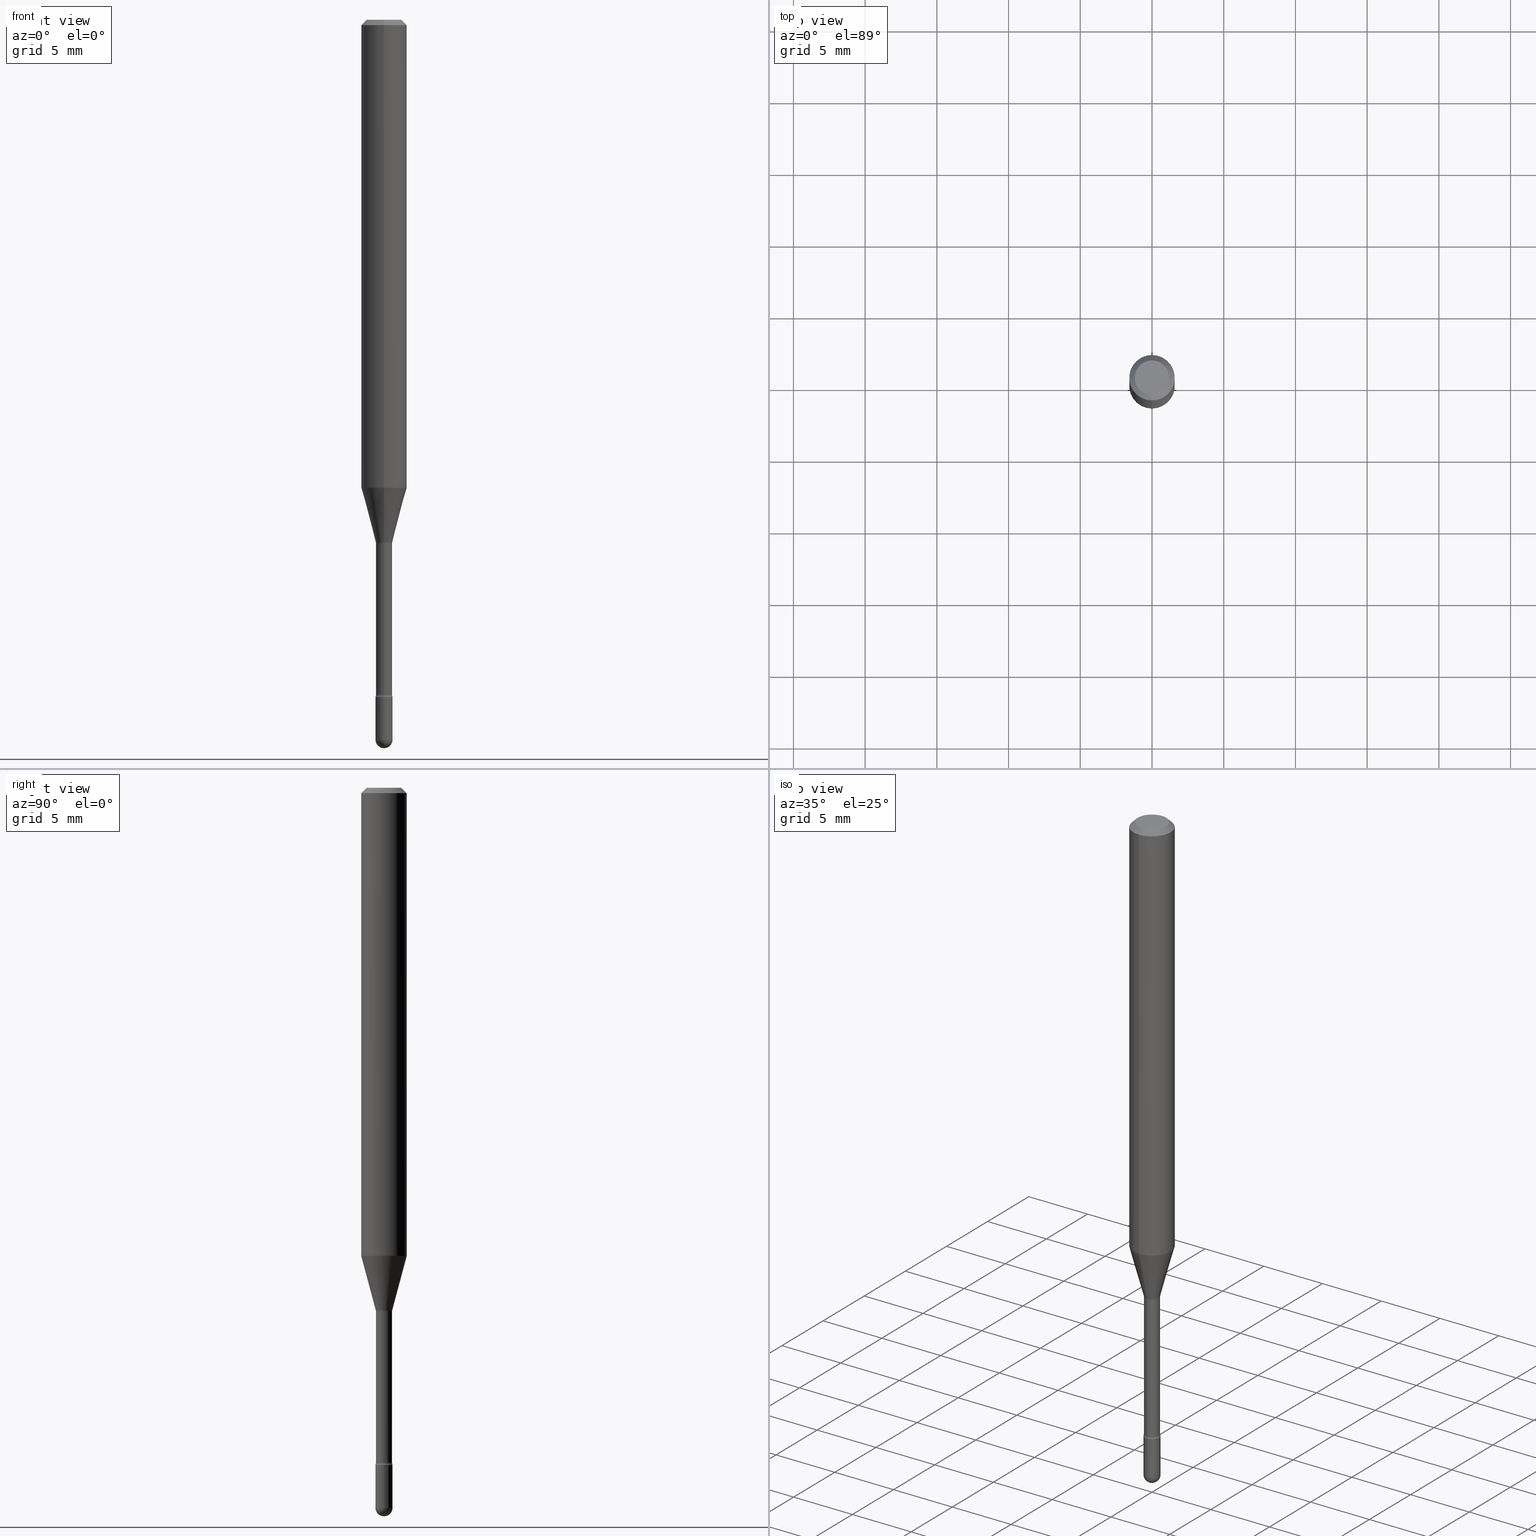
[diagram: canonical four-view strip — front | top / right | iso, engineering-drawing reading convention]
A machine part, canonical four-view strip (front | top / right | iso — engineering-drawing reading convention). The complete STEP part file that produces these views, byte-faithful:
ISO-10303-21;
HEADER;
FILE_DESCRIPTION (( 'STEP AP203' ),
    '1' );
FILE_NAME ('04575.STEP',
    '2024-04-09T22:04:00',
    ( '' ),
    ( '' ),
    'SwSTEP 2.0',
    'SolidWorks 2023',
    '' );
FILE_SCHEMA (( 'CONFIG_CONTROL_DESIGN' ));
ENDSEC;

DATA;
#1 = EDGE_LOOP ( 'NONE', ( #60, #512, #511, #558 ) ) ;
#2 = DIRECTION ( 'NONE',  ( 1.000000000000000000, -6.982962677686265922E-15, 4.876176775795935793E-29 ) ) ;
#3 = ADVANCED_FACE ( 'NONE', ( #256 ), #302, .F. ) ;
#4 = CARTESIAN_POINT ( 'NONE',  ( -1.169113584055446105E-44, 1.669184350826100908E-30, 4.780733988912460139E-16 ) ) ;
#5 = AXIS2_PLACEMENT_3D ( 'NONE', #47, #226, #271 ) ;
#6 = CARTESIAN_POINT ( 'NONE',  ( 4.440892098500937762E-16, 0.06249999999999548278, -1.285225147374218224 ) ) ;
#7 = CYLINDRICAL_SURFACE ( 'NONE', #468, 0.02350000000000000352 ) ;
#8 = CARTESIAN_POINT ( 'NONE',  ( 4.833469095424922735E-29, -6.900912866223477342E-15, -1.976500000000000146 ) ) ;
#9 = CARTESIAN_POINT ( 'NONE',  ( 4.891942432760058933E-29, -6.981523717697293734E-15, -2.000000000000000000 ) ) ;
#10 = DIRECTION ( 'NONE',  ( -2.445468806185136597E-29, 3.491481338843145583E-15, 1.000000000000000000 ) ) ;
#11 = EDGE_CURVE ( 'NONE', #205, #374, #116, .T. ) ;
#12 = CARTESIAN_POINT ( 'NONE',  ( -4.364351673553603615E-16, -0.06250000000000451028, -1.285225147374217780 ) ) ;
#13 = DIRECTION ( 'NONE',  ( -6.982962677686269077E-15, -1.000000000000000000, 0.000000000000000000 ) ) ;
#14 = CIRCLE ( 'NONE', #154, 0.02350000000000000352 ) ;
#15 = CC_DESIGN_SECURITY_CLASSIFICATION ( #29, ( #100 ) ) ;
#16 = CARTESIAN_POINT ( 'NONE',  ( 1.640996229256727347E-16, 0.02349999999999350872, -1.858999999999999986 ) ) ;
#17 = DIRECTION ( 'NONE',  ( -2.445468806185136597E-29, 3.491481338843145583E-15, 1.000000000000000000 ) ) ;
#18 = DIRECTION ( 'NONE',  ( -2.445468806185136597E-29, 3.491481338843145583E-15, 1.000000000000000000 ) ) ;
#19 = EDGE_CURVE ( 'NONE', #165, #161, #88, .T. ) ;
#20 = PERSON_AND_ORGANIZATION_ROLE ( 'design_owner' ) ;
#21 = CONICAL_SURFACE ( 'NONE', #108, 0.06250000000000000000, 0.7853981633974483900 ) ;
#22 = AXIS2_PLACEMENT_3D ( 'NONE', #77, #214, #342 ) ;
#23 = LOCAL_TIME ( 18, 4, 0.000000000000000000, #199 ) ;
#24 = DATE_TIME_ROLE ( 'classification_date' ) ;
#25 = VERTEX_POINT ( 'NONE', #521 ) ;
#26 = EDGE_CURVE ( 'NONE', #111, #248, #440, .T. ) ;
#27 = PERSON_AND_ORGANIZATION_ROLE ( 'creator' ) ;
#28 = AXIS2_PLACEMENT_3D ( 'NONE', #128, #476, #381 ) ;
#29 = SECURITY_CLASSIFICATION ( '', '', #453 ) ;
#30 = LINE ( 'NONE', #380, #127 ) ;
#31 = ADVANCED_BREP_SHAPE_REPRESENTATION ( '04575', ( #354, #357, #460 ), #270 ) ;
#32 = EDGE_LOOP ( 'NONE', ( #437, #474, #125, #546 ) ) ;
#33 = PLANE ( 'NONE',  #117 ) ;
#34 = CARTESIAN_POINT ( 'NONE',  ( 3.668181205914580563E-31, -5.237253518333123803E-17, -0.01500000000000008271 ) ) ;
#35 = CARTESIAN_POINT ( 'NONE',  ( 4.364351673553919652E-16, 0.06249999999999995143, -0.01500000000000030129 ) ) ;
#36 = AXIS2_PLACEMENT_3D ( 'NONE', #450, #263, #180 ) ;
#37 = EDGE_LOOP ( 'NONE', ( #500, #472, #198, #370 ) ) ;
#38 = LOCAL_TIME ( 18, 4, 0.000000000000000000, #413 ) ;
#39 = CYLINDRICAL_SURFACE ( 'NONE', #406, 0.06250000000000000000 ) ;
#40 = ORIENTED_EDGE ( 'NONE', *, *, #309, .T. ) ;
#41 = EDGE_CURVE ( 'NONE', #424, #122, #337, .T. ) ;
#42 = CYLINDRICAL_SURFACE ( 'NONE', #78, 0.02350000000000000352 ) ;
#43 = ORIENTED_EDGE ( 'NONE', *, *, #140, .F. ) ;
#44 = CARTESIAN_POINT ( 'NONE',  ( 4.530652276630265840E-29, -6.468570703757412318E-15, -1.852672283192177582 ) ) ;
#45 = DIRECTION ( 'NONE',  ( 1.000000000000000000, -6.982962677686269077E-15, 0.000000000000000000 ) ) ;
#46 = AXIS2_PLACEMENT_3D ( 'NONE', #62, #421, #549 ) ;
#47 = CARTESIAN_POINT ( 'NONE',  ( 4.833469095424922735E-29, -6.900912866223477342E-15, -1.976500000000000146 ) ) ;
#48 = CARTESIAN_POINT ( 'NONE',  ( 4.833469095424922735E-29, -6.900912866223477342E-15, -1.976500000000000146 ) ) ;
#49 = APPLICATION_CONTEXT ( 'configuration controlled 3d designs of mechanical parts and assemblies' ) ;
#50 = FACE_OUTER_BOUND ( 'NONE', #120, .T. ) ;
#51 = CARTESIAN_POINT ( 'NONE',  ( 4.833469095424922735E-29, -6.900912866223477342E-15, -1.976500000000000146 ) ) ;
#52 = DIRECTION ( 'NONE',  ( -6.982962677686266711E-15, -1.000000000000000000, 3.491502345555396345E-15 ) ) ;
#53 = AXIS2_PLACEMENT_3D ( 'NONE', #34, #562, #75 ) ;
#54 = AXIS2_PLACEMENT_3D ( 'NONE', #275, #464, #277 ) ;
#55 = CARTESIAN_POINT ( 'NONE',  ( -1.169113584055446105E-44, 1.669184350826100908E-30, 4.780733988912460139E-16 ) ) ;
#56 = EDGE_CURVE ( 'NONE', #394, #70, #396, .T. ) ;
#57 = CARTESIAN_POINT ( 'NONE',  ( 3.516501393302491110E-29, -5.020692343279419732E-15, -1.437974787463811133 ) ) ;
#58 = APPROVAL_ROLE ( '' ) ;
#59 = DIRECTION ( 'NONE',  ( -2.445468806185136877E-29, 3.491481338843145188E-15, 1.000000000000000000 ) ) ;
#60 = ORIENTED_EDGE ( 'NONE', *, *, #554, .T. ) ;
#61 = APPROVAL_ROLE ( '' ) ;
#62 = CARTESIAN_POINT ( 'NONE',  ( 4.530625099949576267E-29, -6.468609622310960210E-15, -1.852672283192177582 ) ) ;
#63 = EDGE_CURVE ( 'NONE', #236, #431, #494, .T. ) ;
#64 = ORIENTED_EDGE ( 'NONE', *, *, #76, .T. ) ;
#65 = TOROIDAL_SURFACE ( 'NONE', #506, 0.03710000000000000103, 0.01500000000000001853 ) ;
#66 = DATE_AND_TIME ( #499, #442 ) ;
#67 = ORIENTED_EDGE ( 'NONE', *, *, #230, .T. ) ;
#68 = VERTEX_POINT ( 'NONE', #313 ) ;
#69 = AXIS2_PLACEMENT_3D ( 'NONE', #455, #375, #414 ) ;
#70 = VERTEX_POINT ( 'NONE', #185 ) ;
#71 = CC_DESIGN_DATE_AND_TIME_ASSIGNMENT ( #150, #24, ( #29 ) ) ;
#72 = DIRECTION ( 'NONE',  ( 4.937700262164548042E-15, 0.7071067811865451302, -0.7071067811865499042 ) ) ;
#73 = EDGE_LOOP ( 'NONE', ( #519, #377, #67, #151 ) ) ;
#74 = CARTESIAN_POINT ( 'NONE',  ( -3.773273898774340269E-16, -0.04749999999999999362, 8.310032716116781031E-17 ) ) ;
#75 = DIRECTION ( 'NONE',  ( -6.982962677686265922E-15, -1.000000000000000000, 3.483106191921935554E-15 ) ) ;
#76 = EDGE_CURVE ( 'NONE', #394, #25, #196, .T. ) ;
#77 = CARTESIAN_POINT ( 'NONE',  ( 2.023446189914404450E-45, -2.889180154290816395E-31, -8.274603425271349436E-17 ) ) ;
#78 = AXIS2_PLACEMENT_3D ( 'NONE', #478, #518, #513 ) ;
#79 = AXIS2_PLACEMENT_3D ( 'NONE', #51, #228, #446 ) ;
#80 = ORIENTED_EDGE ( 'NONE', *, *, #557, .F. ) ;
#81 = CC_DESIGN_PERSON_AND_ORGANIZATION_ASSIGNMENT ( #507, #20, ( #296 ) ) ;
#82 = CARTESIAN_POINT ( 'NONE',  ( 3.507007441732712953E-29, -5.007137333733671599E-15, -1.434092501787273211 ) ) ;
#83 = EDGE_LOOP ( 'NONE', ( #479, #430, #465, #252 ) ) ;
#84 = CARTESIAN_POINT ( 'NONE',  ( 4.440892098500625669E-16, 0.06250000000000000000, 2.598545022940337917E-16 ) ) ;
#85 = ADVANCED_FACE ( 'NONE', ( #50 ), #7, .T. ) ;
#86 = DIRECTION ( 'NONE',  ( -1.807323732225328562E-15, -0.2588190451025179639, 0.9659258262890689783 ) ) ;
#87 = CYLINDRICAL_SURFACE ( 'NONE', #299, 0.02210000000000003281 ) ;
#88 = CIRCLE ( 'NONE', #53, 0.06250000000000000000 ) ;
#89 = FACE_OUTER_BOUND ( 'NONE', #73, .T. ) ;
#90 = TOROIDAL_SURFACE ( 'NONE', #485, 0.03710000000000005654, 0.01499999999999999077 ) ;
#91 = APPROVAL_PERSON_ORGANIZATION ( #376, #273, #373 ) ;
#92 = ADVANCED_FACE ( 'NONE', ( #487 ), #492, .T. ) ;
#93 = DIRECTION ( 'NONE',  ( -2.445454137276373671E-29, 3.491502345555396345E-15, 1.000000000000000000 ) ) ;
#94 = DIRECTION ( 'NONE',  ( -6.982962677686265922E-15, -1.000000000000000000, 0.000000000000000000 ) ) ;
#95 = DIRECTION ( 'NONE',  ( 1.839019923739599526E-15, 0.2588190451025248473, 0.9659258262890673130 ) ) ;
#96 = ADVANCED_FACE ( 'NONE', ( #89 ), #184, .T. ) ;
#97 = CARTESIAN_POINT ( 'NONE',  ( -1.543234751768666840E-16, -0.02210000000000003281, 5.552356007280204310E-16 ) ) ;
#98 = EDGE_CURVE ( 'NONE', #419, #68, #420, .T. ) ;
#99 = AXIS2_PLACEMENT_3D ( 'NONE', #44, #251, #384 ) ;
#100 = PRODUCT_DEFINITION_FORMATION_WITH_SPECIFIED_SOURCE ( 'ANY', '', #296, .NOT_KNOWN. ) ;
#101 = CARTESIAN_POINT ( 'NONE',  ( 3.840629472727447874E-16, 0.04749999999999999362, -2.485923956665947867E-16 ) ) ;
#102 = EDGE_LOOP ( 'NONE', ( #297, #64, #469, #156 ) ) ;
#103 = EDGE_CURVE ( 'NONE', #25, #149, #467, .T. ) ;
#104 = APPROVAL_STATUS ( 'not_yet_approved' ) ;
#105 = ORIENTED_EDGE ( 'NONE', *, *, #11, .T. ) ;
#106 = ADVANCED_FACE ( 'NONE', ( #130 ), #366, .T. ) ;
#107 = CARTESIAN_POINT ( 'NONE',  ( -0.02350000000000000352, -6.528810794662819092E-15, -1.858999999999999986 ) ) ;
#108 = AXIS2_PLACEMENT_3D ( 'NONE', #449, #407, #219 ) ;
#109 = CIRCLE ( 'NONE', #422, 0.02261111260566398690 ) ;
#110 = PERSON_AND_ORGANIZATION ( #190, #423 ) ;
#111 = VERTEX_POINT ( 'NONE', #531 ) ;
#112 = COORDINATED_UNIVERSAL_TIME_OFFSET ( 5, 0, .BEHIND. ) ;
#113 = EDGE_LOOP ( 'NONE', ( #286, #159, #288, #333 ) ) ;
#114 = ORIENTED_EDGE ( 'NONE', *, *, #140, .T. ) ;
#115 = EDGE_CURVE ( 'NONE', #424, #504, #137, .T. ) ;
#116 = CIRCLE ( 'NONE', #553, 0.02210000000000000159 ) ;
#117 = AXIS2_PLACEMENT_3D ( 'NONE', #290, #436, #2 ) ;
#118 = DIRECTION ( 'NONE',  ( 1.000000000000000000, -7.105427357601001070E-15, 4.926315765800111665E-29 ) ) ;
#119 = APPROVAL_PERSON_ORGANIZATION ( #320, #132, #61 ) ;
#120 = EDGE_LOOP ( 'NONE', ( #194, #435, #285, #550, #291 ) ) ;
#121 = FACE_OUTER_BOUND ( 'NONE', #37, .T. ) ;
#122 = VERTEX_POINT ( 'NONE', #267 ) ;
#123 = DIRECTION ( 'NONE',  ( -2.445454137276373671E-29, 3.491502345555396345E-15, 1.000000000000000000 ) ) ;
#124 = CC_DESIGN_PERSON_AND_ORGANIZATION_ASSIGNMENT ( #110, #27, ( #466 ) ) ;
#125 = ORIENTED_EDGE ( 'NONE', *, *, #345, .F. ) ;
#126 = DIRECTION ( 'NONE',  ( 1.000000000000000000, -6.982962677686269866E-15, 0.000000000000000000 ) ) ;
#127 = VECTOR ( 'NONE', #322, 39.37007874015748143 ) ;
#128 = CARTESIAN_POINT ( 'NONE',  ( 2.636113549670428316E-16, 0.03709999999999358949, -1.852672283192177582 ) ) ;
#129 = FACE_OUTER_BOUND ( 'NONE', #201, .T. ) ;
#130 = FACE_OUTER_BOUND ( 'NONE', #1, .T. ) ;
#131 = DIRECTION ( 'NONE',  ( 1.000000000000000000, -6.982962677686265922E-15, 4.883557194083112340E-29 ) ) ;
#132 = APPROVAL ( #202, 'UNSPECIFIED' ) ;
#133 = DIRECTION ( 'NONE',  ( -2.445454137276373671E-29, 3.491502345555396345E-15, 1.000000000000000000 ) ) ;
#134 = DIRECTION ( 'NONE',  ( -6.982962677686265922E-15, -1.000000000000000000, 0.000000000000000000 ) ) ;
#135 = VECTOR ( 'NONE', #164, 39.37007874015748143 ) ;
#136 = CARTESIAN_POINT ( 'NONE',  ( 1.570299446030275858E-16, 0.02209999999999498130, -1.437974787463811133 ) ) ;
#137 = LINE ( 'NONE', #181, #505 ) ;
#138 = ADVANCED_FACE ( 'NONE', ( #265 ), #21, .T. ) ;
#139 = CARTESIAN_POINT ( 'NONE',  ( -1.543234751768215957E-16, -0.02210000000000652762, -1.852672283192177582 ) ) ;
#140 = EDGE_CURVE ( 'NONE', #122, #346, #352, .T. ) ;
#141 = PLANE ( 'NONE',  #433 ) ;
#142 = APPROVAL_STATUS ( 'not_yet_approved' ) ;
#143 = DIRECTION ( 'NONE',  ( -2.445454137276373671E-29, 3.491502345555396345E-15, 1.000000000000000000 ) ) ;
#144 = AXIS2_PLACEMENT_3D ( 'NONE', #262, #229, #316 ) ;
#145 = VECTOR ( 'NONE', #59, 39.37007874015748143 ) ;
#146 = EDGE_LOOP ( 'NONE', ( #362, #501 ) ) ;
#147 = EDGE_CURVE ( 'NONE', #248, #68, #560, .T. ) ;
#148 = ORIENTED_EDGE ( 'NONE', *, *, #237, .T. ) ;
#149 = VERTEX_POINT ( 'NONE', #209 ) ;
#150 = DATE_AND_TIME ( #272, #38 ) ;
#151 = ORIENTED_EDGE ( 'NONE', *, *, #533, .T. ) ;
#152 = CARTESIAN_POINT ( 'NONE',  ( -0.02350000000000000352, 1.669775429036235687E-16, -1.155949746209903035E-30 ) ) ;
#153 = ORIENTED_EDGE ( 'NONE', *, *, #147, .F. ) ;
#154 = AXIS2_PLACEMENT_3D ( 'NONE', #317, #314, #489 ) ;
#155 = DATE_AND_TIME ( #548, #206 ) ;
#156 = ORIENTED_EDGE ( 'NONE', *, *, #444, .F. ) ;
#157 = EDGE_CURVE ( 'NONE', #424, #374, #220, .T. ) ;
#158 =( LENGTH_UNIT ( ) NAMED_UNIT ( * ) SI_UNIT ( $, .METRE. ) );
#159 = ORIENTED_EDGE ( 'NONE', *, *, #282, .T. ) ;
#160 = DIRECTION ( 'NONE',  ( -2.445454137276373671E-29, 3.491502345555396345E-15, 1.000000000000000000 ) ) ;
#161 = VERTEX_POINT ( 'NONE', #340 ) ;
#162 = AXIS2_PLACEMENT_3D ( 'NONE', #232, #131, #307 ) ;
#163 = CIRCLE ( 'NONE', #338, 0.02350000000000000352 ) ;
#164 = DIRECTION ( 'NONE',  ( -2.445454137276373671E-29, 3.491502345555396345E-15, 1.000000000000000000 ) ) ;
#165 = VERTEX_POINT ( 'NONE', #300 ) ;
#166 = ADVANCED_FACE ( 'NONE', ( #249 ), #42, .T. ) ;
#167 = CARTESIAN_POINT ( 'NONE',  ( -1.169113584055446105E-44, 1.669184350826100908E-30, 4.780733988912460139E-16 ) ) ;
#168 = ORIENTED_EDGE ( 'NONE', *, *, #157, .F. ) ;
#169 = LINE ( 'NONE', #84, #135 ) ;
#170 = CARTESIAN_POINT ( 'NONE',  ( 3.516501393302491110E-29, -5.020692343279419732E-15, -1.437974787463811133 ) ) ;
#171 = CARTESIAN_POINT ( 'NONE',  ( 3.142959153977918032E-29, -4.487366616623861498E-15, -1.285225147374218002 ) ) ;
#172 = AXIS2_PLACEMENT_3D ( 'NONE', #445, #480, #13 ) ;
#173 = CONICAL_SURFACE ( 'NONE', #372, 0.02261111260566398690, 0.2617993877991501295 ) ;
#174 =( CONVERSION_BASED_UNIT ( 'INCH', #264 ) LENGTH_UNIT ( ) NAMED_UNIT ( #530 ) );
#175 = DIRECTION ( 'NONE',  ( -6.982962677686265133E-15, -1.000000000000000000, 3.491502345555394767E-15 ) ) ;
#176 = APPROVAL_PERSON_ORGANIZATION ( #332, #502, #58 ) ;
#177 = FACE_OUTER_BOUND ( 'NONE', #83, .T. ) ;
#178 = CARTESIAN_POINT ( 'NONE',  ( 4.833469095424922735E-29, -6.900912866223477342E-15, -1.976500000000000146 ) ) ;
#179 = CC_DESIGN_PERSON_AND_ORGANIZATION_ASSIGNMENT ( #238, #204, ( #29 ) ) ;
#180 = DIRECTION ( 'NONE',  ( 6.982962677686265922E-15, 1.000000000000000000, 0.000000000000000000 ) ) ;
#181 = CARTESIAN_POINT ( 'NONE',  ( 1.606616180941167967E-16, 0.02261111260565898048, -1.434092501787273211 ) ) ;
#182 = DIRECTION ( 'NONE',  ( -2.445454137276373671E-29, 3.491502345555396345E-15, 1.000000000000000000 ) ) ;
#183 = ADVANCED_FACE ( 'NONE', ( #293 ), #173, .T. ) ;
#184 = CONICAL_SURFACE ( 'NONE', #144, 0.06250000000000000000, 0.7853981633974483900 ) ;
#185 = CARTESIAN_POINT ( 'NONE',  ( -1.669775429035750291E-16, -0.02350000000000688344, -1.976500000000000146 ) ) ;
#186 = AXIS2_PLACEMENT_3D ( 'NONE', #57, #452, #235 ) ;
#187 = EDGE_CURVE ( 'NONE', #504, #161, #169, .T. ) ;
#188 = DIRECTION ( 'NONE',  ( -2.445454137276373391E-29, 3.491502345555396345E-15, 1.000000000000000000 ) ) ;
#189 = PRODUCT_DEFINITION_SHAPE ( 'NONE', 'NONE',  #466 ) ;
#190 = PERSON ( 'UNSPECIFIED', 'UNSPECIFIED', 'UNSPECIFIED', ('UNSPECIFIED'), ('UNSPECIFIED'), ('UNSPECIFIED') ) ;
#191 = DIRECTION ( 'NONE',  ( 1.000000000000000000, -6.982962677686269077E-15, 0.000000000000000000 ) ) ;
#192 = DIRECTION ( 'NONE',  ( 0.000000000000000000, 0.000000000000000000, 1.000000000000000000 ) ) ;
#193 = VERTEX_POINT ( 'NONE', #473 ) ;
#194 = ORIENTED_EDGE ( 'NONE', *, *, #103, .T. ) ;
#195 = CALENDAR_DATE ( 2024, 9, 4 ) ;
#196 = CIRCLE ( 'NONE', #162, 0.02349999999999995148 ) ;
#197 = TOROIDAL_SURFACE ( 'NONE', #99, 0.03710000000000005654, 0.01499999999999999077 ) ;
#198 = ORIENTED_EDGE ( 'NONE', *, *, #98, .T. ) ;
#199 = COORDINATED_UNIVERSAL_TIME_OFFSET ( 5, 0, .BEHIND. ) ;
#200 = ADVANCED_FACE ( 'NONE', ( #255 ), #33, .T. ) ;
#201 = EDGE_LOOP ( 'NONE', ( #383, #385, #203, #245 ) ) ;
#202 = APPROVAL_STATUS ( 'not_yet_approved' ) ;
#203 = ORIENTED_EDGE ( 'NONE', *, *, #488, .T. ) ;
#204 = PERSON_AND_ORGANIZATION_ROLE ( 'classification_officer' ) ;
#205 = VERTEX_POINT ( 'NONE', #522 ) ;
#206 = LOCAL_TIME ( 18, 4, 0.000000000000000000, #276 ) ;
#207 = EDGE_CURVE ( 'NONE', #68, #248, #532, .T. ) ;
#208 = ORIENTED_EDGE ( 'NONE', *, *, #19, .T. ) ;
#209 = CARTESIAN_POINT ( 'NONE',  ( -0.02350000000000000699, -6.528810794662819092E-15, -1.976500000000000146 ) ) ;
#210 = DIRECTION ( 'NONE',  ( 2.445454137276373391E-29, -3.491502345555396345E-15, -1.000000000000000000 ) ) ;
#211 = ADVANCED_FACE ( 'NONE', ( #564 ), #39, .T. ) ;
#212 = AXIS2_PLACEMENT_3D ( 'NONE', #4, #395, #403 ) ;
#213 = AXIS2_PLACEMENT_3D ( 'NONE', #349, #123, #434 ) ;
#214 = DIRECTION ( 'NONE',  ( -2.445454137276373671E-29, 3.491502345555396345E-15, 1.000000000000000000 ) ) ;
#215 = EDGE_LOOP ( 'NONE', ( #168, #341, #411, #105 ) ) ;
#216 = LINE ( 'NONE', #344, #412 ) ;
#217 = ORIENTED_EDGE ( 'NONE', *, *, #115, .T. ) ;
#218 = DIRECTION ( 'NONE',  ( -6.982962677686265922E-15, -1.000000000000000000, 3.491502345555397133E-15 ) ) ;
#219 = DIRECTION ( 'NONE',  ( 6.982962677686265922E-15, 1.000000000000000000, -3.483106191921935554E-15 ) ) ;
#220 = CIRCLE ( 'NONE', #253, 0.01500000000000002373 ) ;
#221 = CARTESIAN_POINT ( 'NONE',  ( 3.516522486823451947E-29, -5.020662136156834766E-15, -1.437974787463811133 ) ) ;
#222 = CIRCLE ( 'NONE', #186, 0.02210000000000000159 ) ;
#223 = ADVANCED_FACE ( 'NONE', ( #121 ), #197, .F. ) ;
#224 = AXIS2_PLACEMENT_3D ( 'NONE', #538, #266, #448 ) ;
#225 = DIRECTION ( 'NONE',  ( 1.000000000000000000, -6.982962677686265922E-15, 4.876176775795935793E-29 ) ) ;
#226 = DIRECTION ( 'NONE',  ( -2.445468806185136597E-29, 3.491481338843145583E-15, 1.000000000000000000 ) ) ;
#227 = DIRECTION ( 'NONE',  ( -2.445454137276373671E-29, 3.491502345555396345E-15, 1.000000000000000000 ) ) ;
#228 = DIRECTION ( 'NONE',  ( -1.000000000000000000, 6.982962677686265922E-15, -4.883557194083111780E-29 ) ) ;
#229 = DIRECTION ( 'NONE',  ( 2.445454137276373671E-29, -3.491502345555396345E-15, -1.000000000000000000 ) ) ;
#230 = EDGE_CURVE ( 'NONE', #431, #161, #304, .T. ) ;
#231 = DIRECTION ( 'NONE',  ( -6.982962677686265922E-15, -1.000000000000000000, 0.000000000000000000 ) ) ;
#232 = CARTESIAN_POINT ( 'NONE',  ( 4.833469095424922735E-29, -6.900912866223477342E-15, -1.976500000000000146 ) ) ;
#233 = CIRCLE ( 'NONE', #46, 0.02210000000000006057 ) ;
#234 = CARTESIAN_POINT ( 'NONE',  ( -4.287811248607203282E-16, -0.06250000000000005551, -0.01499999999999986587 ) ) ;
#235 = DIRECTION ( 'NONE',  ( -6.982962677686265922E-15, -1.000000000000000000, 0.000000000000000000 ) ) ;
#236 = VERTEX_POINT ( 'NONE', #74 ) ;
#237 = EDGE_CURVE ( 'NONE', #346, #504, #397, .T. ) ;
#238 = PERSON_AND_ORGANIZATION ( #190, #423 ) ;
#239 = ORIENTED_EDGE ( 'NONE', *, *, #382, .T. ) ;
#240 = CIRCLE ( 'NONE', #213, 0.06250000000000000000 ) ;
#241 = EDGE_LOOP ( 'NONE', ( #80, #250, #278, #254, #417 ) ) ;
#242 = APPROVAL_DATE_TIME ( #284, #502 ) ;
#243 = ORIENTED_EDGE ( 'NONE', *, *, #292, .T. ) ;
#244 = VERTEX_POINT ( 'NONE', #429 ) ;
#245 = ORIENTED_EDGE ( 'NONE', *, *, #545, .F. ) ;
#246 = CONICAL_SURFACE ( 'NONE', #224, 0.02261111260566398690, 0.2617993877991501295 ) ;
#247 = EDGE_CURVE ( 'NONE', #431, #236, #321, .T. ) ;
#248 = VERTEX_POINT ( 'NONE', #520 ) ;
#249 = FACE_OUTER_BOUND ( 'NONE', #241, .T. ) ;
#250 = ORIENTED_EDGE ( 'NONE', *, *, #345, .T. ) ;
#251 = DIRECTION ( 'NONE',  ( -2.445454137276373671E-29, 3.491502345555396345E-15, 1.000000000000000000 ) ) ;
#252 = ORIENTED_EDGE ( 'NONE', *, *, #98, .F. ) ;
#253 = AXIS2_PLACEMENT_3D ( 'NONE', #335, #118, #471 ) ;
#254 = ORIENTED_EDGE ( 'NONE', *, *, #425, .T. ) ;
#255 = FACE_OUTER_BOUND ( 'NONE', #283, .T. ) ;
#256 = FACE_OUTER_BOUND ( 'NONE', #146, .T. ) ;
#257 = CC_DESIGN_PERSON_AND_ORGANIZATION_ASSIGNMENT ( #497, #378, ( #100 ) ) ;
#258 = LINE ( 'NONE', #234, #441 ) ;
#259 = DIRECTION ( 'NONE',  ( -2.445454137276373671E-29, 3.491502345555396345E-15, 1.000000000000000000 ) ) ;
#260 = CARTESIAN_POINT ( 'NONE',  ( 3.507007441732712953E-29, -5.007137333733671599E-15, -1.434092501787273211 ) ) ;
#261 = VECTOR ( 'NONE', #72, 39.37007874015748143 ) ;
#262 = CARTESIAN_POINT ( 'NONE',  ( 3.668181205914580563E-31, -5.237253518333123803E-17, -0.01500000000000008271 ) ) ;
#263 = DIRECTION ( 'NONE',  ( -1.000000000000000000, 6.982962677686265922E-15, -4.883557194083111780E-29 ) ) ;
#264 = LENGTH_MEASURE_WITH_UNIT ( LENGTH_MEASURE( 0.02539999999999999897 ), #158 );
#265 = FACE_OUTER_BOUND ( 'NONE', #301, .T. ) ;
#266 = DIRECTION ( 'NONE',  ( -2.445454137276373671E-29, 3.491502345555396345E-15, 1.000000000000000000 ) ) ;
#267 = CARTESIAN_POINT ( 'NONE',  ( -1.578925554262780210E-16, -0.02261111260566899331, -1.434092501787273211 ) ) ;
#268 = DIRECTION ( 'NONE',  ( -2.445454137276373671E-29, 3.491502345555396345E-15, 1.000000000000000000 ) ) ;
#269 = AXIS2_PLACEMENT_3D ( 'NONE', #428, #210, #336 ) ;
#270 =( GEOMETRIC_REPRESENTATION_CONTEXT ( 3 ) GLOBAL_UNCERTAINTY_ASSIGNED_CONTEXT ( ( #457 ) ) GLOBAL_UNIT_ASSIGNED_CONTEXT ( ( #174, #535, #351 ) ) REPRESENTATION_CONTEXT ( 'NONE', 'WORKASPACE' ) );
#271 = DIRECTION ( 'NONE',  ( 1.000000000000000000, -6.982962677686269077E-15, 0.000000000000000000 ) ) ;
#272 = CALENDAR_DATE ( 2024, 9, 4 ) ;
#273 = APPROVAL ( #104, 'UNSPECIFIED' ) ;
#274 = MECHANICAL_CONTEXT ( 'NONE', #404, 'mechanical' ) ;
#275 = CARTESIAN_POINT ( 'NONE',  ( 3.668181205914580563E-31, -5.237253518333123803E-17, -0.01500000000000008271 ) ) ;
#276 = COORDINATED_UNIVERSAL_TIME_OFFSET ( 5, 0, .BEHIND. ) ;
#277 = DIRECTION ( 'NONE',  ( -6.982962677686265922E-15, -1.000000000000000000, 3.483106191921935554E-15 ) ) ;
#278 = ORIENTED_EDGE ( 'NONE', *, *, #444, .T. ) ;
#279 = TOROIDAL_SURFACE ( 'NONE', #348, 0.03710000000000000103, 0.01500000000000001853 ) ;
#280 = ORIENTED_EDGE ( 'NONE', *, *, #207, .F. ) ;
#281 = APPROVAL_DATE_TIME ( #539, #132 ) ;
#282 = EDGE_CURVE ( 'NONE', #504, #346, #240, .T. ) ;
#283 = EDGE_LOOP ( 'NONE', ( #508, #243 ) ) ;
#284 = DATE_AND_TIME ( #509, #23 ) ;
#285 = ORIENTED_EDGE ( 'NONE', *, *, #526, .F. ) ;
#286 = ORIENTED_EDGE ( 'NONE', *, *, #187, .F. ) ;
#287 = EDGE_CURVE ( 'NONE', #111, #374, #216, .T. ) ;
#288 = ORIENTED_EDGE ( 'NONE', *, *, #563, .T. ) ;
#289 = CIRCLE ( 'NONE', #54, 0.06250000000000000000 ) ;
#290 = CARTESIAN_POINT ( 'NONE',  ( 4.546126510698169319E-29, -6.490663808909408226E-15, -1.858999999999999986 ) ) ;
#291 = ORIENTED_EDGE ( 'NONE', *, *, #529, .T. ) ;
#292 = EDGE_CURVE ( 'NONE', #556, #193, #163, .T. ) ;
#293 = FACE_OUTER_BOUND ( 'NONE', #334, .T. ) ;
#294 = ORIENTED_EDGE ( 'NONE', *, *, #459, .T. ) ;
#295 = CARTESIAN_POINT ( 'NONE',  ( 4.546099241196779403E-29, -6.490702860387482774E-15, -1.858999999999999986 ) ) ;
#296 = PRODUCT ( '04575', '04575', '', ( #274 ) ) ;
#297 = ORIENTED_EDGE ( 'NONE', *, *, #56, .F. ) ;
#298 = CLOSED_SHELL ( 'NONE', ( #303, #106, #361, #138, #92, #390, #183, #211, #96, #3, #408, #223, #339, #510 ) ) ;
#299 = AXIS2_PLACEMENT_3D ( 'NONE', #55, #306, #409 ) ;
#300 = CARTESIAN_POINT ( 'NONE',  ( -4.364351673553912750E-16, -0.06250000000000005551, -0.01499999999999986587 ) ) ;
#301 = EDGE_LOOP ( 'NONE', ( #498, #40, #208, #540 ) ) ;
#302 = PLANE ( 'NONE',  #269 ) ;
#303 = ADVANCED_FACE ( 'NONE', ( #129 ), #279, .F. ) ;
#304 = LINE ( 'NONE', #35, #261 ) ;
#305 = CARTESIAN_POINT ( 'NONE',  ( 4.546099241196779403E-29, -6.490702860387482774E-15, -1.858999999999999986 ) ) ;
#306 = DIRECTION ( 'NONE',  ( -2.445454137276373671E-29, 3.491502345555396345E-15, 1.000000000000000000 ) ) ;
#307 = DIRECTION ( 'NONE',  ( 6.982962677686265922E-15, 1.000000000000000000, 0.000000000000000000 ) ) ;
#308 = AXIS2_PLACEMENT_3D ( 'NONE', #305, #259, #439 ) ;
#309 = EDGE_CURVE ( 'NONE', #236, #165, #258, .T. ) ;
#310 = DIRECTION ( 'NONE',  ( -6.982962677686265922E-15, -1.000000000000000000, 3.491502345555396739E-15 ) ) ;
#311 = VECTOR ( 'NONE', #268, 39.37007874015748143 ) ;
#312 = CC_DESIGN_APPROVAL ( #132, ( #466 ) ) ;
#313 = CARTESIAN_POINT ( 'NONE',  ( -1.640996229255817445E-16, -0.02350000000000649139, -1.858999999999999986 ) ) ;
#314 = DIRECTION ( 'NONE',  ( -2.445468806185136597E-29, 3.491481338843145583E-15, 1.000000000000000000 ) ) ;
#315 = CARTESIAN_POINT ( 'NONE',  ( 4.530625099949576267E-29, -6.468609622310960210E-15, -1.852672283192177582 ) ) ;
#316 = DIRECTION ( 'NONE',  ( 6.982962677686265922E-15, 1.000000000000000000, -3.483106191921935554E-15 ) ) ;
#317 = CARTESIAN_POINT ( 'NONE',  ( 4.546126510698169319E-29, -6.490663808909408226E-15, -1.858999999999999986 ) ) ;
#318 = CARTESIAN_POINT ( 'NONE',  ( 3.023754139721055453E-16, 0.02261111260565898395, -1.434092501787273211 ) ) ;
#319 = FACE_OUTER_BOUND ( 'NONE', #456, .T. ) ;
#320 = PERSON_AND_ORGANIZATION ( #190, #423 ) ;
#321 = CIRCLE ( 'NONE', #22, 0.04749999999999999362 ) ;
#322 = DIRECTION ( 'NONE',  ( -2.445454137276373671E-29, 3.491502345555396345E-15, 1.000000000000000000 ) ) ;
#323 = ADVANCED_FACE ( 'NONE', ( #490 ), #486, .T. ) ;
#324 = ORIENTED_EDGE ( 'NONE', *, *, #115, .F. ) ;
#325 = DATE_TIME_ROLE ( 'creation_date' ) ;
#326 = ORIENTED_EDGE ( 'NONE', *, *, #237, .F. ) ;
#327 = APPROVAL_DATE_TIME ( #155, #273 ) ;
#328 = ADVANCED_FACE ( 'NONE', ( #534 ), #528, .T. ) ;
#329 = LINE ( 'NONE', #152, #145 ) ;
#330 = AXIS2_PLACEMENT_3D ( 'NONE', #8, #17, #356 ) ;
#331 = EDGE_LOOP ( 'NONE', ( #426, #503, #294, #461 ) ) ;
#332 = PERSON_AND_ORGANIZATION ( #190, #423 ) ;
#333 = ORIENTED_EDGE ( 'NONE', *, *, #533, .F. ) ;
#334 = EDGE_LOOP ( 'NONE', ( #324, #415, #114, #565 ) ) ;
#335 = CARTESIAN_POINT ( 'NONE',  ( 2.636113549670322806E-16, 0.03709999999999497727, -1.437974787463811133 ) ) ;
#336 = DIRECTION ( 'NONE',  ( 6.982962677686265922E-15, 1.000000000000000000, -3.491502345555396345E-15 ) ) ;
#337 = CIRCLE ( 'NONE', #347, 0.02261111260566398690 ) ;
#338 = AXIS2_PLACEMENT_3D ( 'NONE', #524, #566, #126 ) ;
#339 = ADVANCED_FACE ( 'NONE', ( #402 ), #87, .T. ) ;
#340 = CARTESIAN_POINT ( 'NONE',  ( 4.440892098500941706E-16, 0.06249999999999995143, -0.01500000000000030129 ) ) ;
#341 = ORIENTED_EDGE ( 'NONE', *, *, #382, .F. ) ;
#342 = DIRECTION ( 'NONE',  ( -6.982962677686266711E-15, -1.000000000000000000, 3.491502345555396345E-15 ) ) ;
#343 = EDGE_LOOP ( 'NONE', ( #148, #462, #389, #552 ) ) ;
#344 = CARTESIAN_POINT ( 'NONE',  ( 1.570299446029823249E-16, 0.02210000000000003281, 4.009111970544717448E-16 ) ) ;
#345 = EDGE_CURVE ( 'NONE', #149, #70, #365, .T. ) ;
#346 = VERTEX_POINT ( 'NONE', #12 ) ;
#347 = AXIS2_PLACEMENT_3D ( 'NONE', #401, #227, #134 ) ;
#348 = AXIS2_PLACEMENT_3D ( 'NONE', #221, #398, #310 ) ;
#349 = CARTESIAN_POINT ( 'NONE',  ( 3.142959153977918032E-29, -4.487366616623861498E-15, -1.285225147374218002 ) ) ;
#350 = LOCAL_TIME ( 18, 4, 0.000000000000000000, #454 ) ;
#351 =( NAMED_UNIT ( * ) SI_UNIT ( $, .STERADIAN. ) SOLID_ANGLE_UNIT ( ) );
#352 = LINE ( 'NONE', #399, #484 ) ;
#353 = FACE_OUTER_BOUND ( 'NONE', #215, .T. ) ;
#354 = MANIFOLD_SOLID_BREP ( 'Body-Move/Copy2[1]', #371 ) ;
#355 = DIRECTION ( 'NONE',  ( -1.000000000000000000, 7.105427357601001070E-15, -4.926315508542082329E-29 ) ) ;
#356 = DIRECTION ( 'NONE',  ( 1.000000000000000000, -6.982962677686269077E-15, 0.000000000000000000 ) ) ;
#357 = MANIFOLD_SOLID_BREP ( 'Body-Move/Copy2[2]', #298 ) ;
#358 = CARTESIAN_POINT ( 'NONE',  ( 4.833469095424922735E-29, -6.900912866223477342E-15, -1.976500000000000146 ) ) ;
#359 = DIRECTION ( 'NONE',  ( -2.445468806185136597E-29, 3.491481338843145583E-15, 1.000000000000000000 ) ) ;
#360 = DIRECTION ( 'NONE',  ( -6.982962677686265922E-15, -1.000000000000000000, 3.491502345555396739E-15 ) ) ;
#361 = ADVANCED_FACE ( 'NONE', ( #177 ), #90, .F. ) ;
#362 = ORIENTED_EDGE ( 'NONE', *, *, #247, .T. ) ;
#363 = AXIS2_PLACEMENT_3D ( 'NONE', #527, #525, #52 ) ;
#364 = DIRECTION ( 'NONE',  ( -6.982962677686265922E-15, -1.000000000000000000, 3.491502345555396739E-15 ) ) ;
#365 = CIRCLE ( 'NONE', #386, 0.02350000000000000699 ) ;
#366 = CYLINDRICAL_SURFACE ( 'NONE', #514, 0.02210000000000003281 ) ;
#367 = CARTESIAN_POINT ( 'NONE',  ( 4.530652276630265840E-29, -6.468570703757412318E-15, -1.852672283192177582 ) ) ;
#368 = DIRECTION ( 'NONE',  ( -2.445454137276373671E-29, 3.491502345555396345E-15, 1.000000000000000000 ) ) ;
#369 = CC_DESIGN_DATE_AND_TIME_ASSIGNMENT ( #66, #325, ( #466 ) ) ;
#370 = ORIENTED_EDGE ( 'NONE', *, *, #207, .T. ) ;
#371 = CLOSED_SHELL ( 'NONE', ( #85, #328, #200, #323, #166 ) ) ;
#372 = AXIS2_PLACEMENT_3D ( 'NONE', #82, #393, #427 ) ;
#373 = APPROVAL_ROLE ( '' ) ;
#374 = VERTEX_POINT ( 'NONE', #136 ) ;
#375 = DIRECTION ( 'NONE',  ( -1.000000000000000000, 6.982962677686265922E-15, -4.883557194083112340E-29 ) ) ;
#376 = PERSON_AND_ORGANIZATION ( #190, #423 ) ;
#377 = ORIENTED_EDGE ( 'NONE', *, *, #247, .F. ) ;
#378 = PERSON_AND_ORGANIZATION_ROLE ( 'creator' ) ;
#379 = CIRCLE ( 'NONE', #5, 0.02350000000000000699 ) ;
#380 = CARTESIAN_POINT ( 'NONE',  ( -4.364351673553916201E-16, -0.06250000000000000000, 6.962922954884584334E-16 ) ) ;
#381 = DIRECTION ( 'NONE',  ( 7.105427357601001859E-15, 1.000000000000000000, 0.000000000000000000 ) ) ;
#382 = EDGE_CURVE ( 'NONE', #122, #424, #109, .T. ) ;
#383 = ORIENTED_EDGE ( 'NONE', *, *, #41, .F. ) ;
#384 = DIRECTION ( 'NONE',  ( -6.982962677686265922E-15, -1.000000000000000000, 3.491502345555396739E-15 ) ) ;
#385 = ORIENTED_EDGE ( 'NONE', *, *, #157, .T. ) ;
#386 = AXIS2_PLACEMENT_3D ( 'NONE', #358, #18, #191 ) ;
#387 = EDGE_CURVE ( 'NONE', #111, #419, #496, .T. ) ;
#388 = DIRECTION ( 'NONE',  ( -2.445454137276373671E-29, 3.491502345555396345E-15, 1.000000000000000000 ) ) ;
#389 = ORIENTED_EDGE ( 'NONE', *, *, #19, .F. ) ;
#390 = ADVANCED_FACE ( 'NONE', ( #405 ), #246, .T. ) ;
#391 = DIRECTION ( 'NONE',  ( -2.445454137276373671E-29, 3.491502345555396345E-15, 1.000000000000000000 ) ) ;
#392 = EDGE_LOOP ( 'NONE', ( #239, #217, #326, #43 ) ) ;
#393 = DIRECTION ( 'NONE',  ( -2.445454137276373671E-29, 3.491502345555396345E-15, 1.000000000000000000 ) ) ;
#394 = VERTEX_POINT ( 'NONE', #9 ) ;
#395 = DIRECTION ( 'NONE',  ( -2.445454137276373671E-29, 3.491502345555396345E-15, 1.000000000000000000 ) ) ;
#396 = CIRCLE ( 'NONE', #541, 0.02349999999999995148 ) ;
#397 = CIRCLE ( 'NONE', #458, 0.06250000000000000000 ) ;
#398 = DIRECTION ( 'NONE',  ( -2.445454137276373671E-29, 3.491502345555396345E-15, 1.000000000000000000 ) ) ;
#399 = CARTESIAN_POINT ( 'NONE',  ( -1.578925554262780210E-16, -0.02261111260566899331, -1.434092501787273211 ) ) ;
#400 = LINE ( 'NONE', #97, #311 ) ;
#401 = CARTESIAN_POINT ( 'NONE',  ( 3.507007441732712953E-29, -5.007137333733671599E-15, -1.434092501787273211 ) ) ;
#402 = FACE_OUTER_BOUND ( 'NONE', #331, .T. ) ;
#403 = DIRECTION ( 'NONE',  ( -6.982962677686265922E-15, -1.000000000000000000, 3.491502345555397133E-15 ) ) ;
#404 = APPLICATION_CONTEXT ( 'configuration controlled 3d designs of mechanical parts and assemblies' ) ;
#405 = FACE_OUTER_BOUND ( 'NONE', #392, .T. ) ;
#406 = AXIS2_PLACEMENT_3D ( 'NONE', #167, #160, #218 ) ;
#407 = DIRECTION ( 'NONE',  ( 2.445454137276373671E-29, -3.491502345555396345E-15, -1.000000000000000000 ) ) ;
#408 = ADVANCED_FACE ( 'NONE', ( #319 ), #141, .F. ) ;
#409 = DIRECTION ( 'NONE',  ( -6.982962677686265133E-15, -1.000000000000000000, 3.491502345555394767E-15 ) ) ;
#410 = PERSON_AND_ORGANIZATION_ROLE ( 'design_supplier' ) ;
#411 = ORIENTED_EDGE ( 'NONE', *, *, #545, .T. ) ;
#412 = VECTOR ( 'NONE', #391, 39.37007874015748143 ) ;
#413 = COORDINATED_UNIVERSAL_TIME_OFFSET ( 5, 0, .BEHIND. ) ;
#414 = DIRECTION ( 'NONE',  ( -6.982962677686262766E-15, -1.000000000000000000, 0.000000000000000000 ) ) ;
#415 = ORIENTED_EDGE ( 'NONE', *, *, #41, .T. ) ;
#416 = DIRECTION ( 'NONE',  ( 1.000000000000000000, 0.000000000000000000, 0.000000000000000000 ) ) ;
#417 = ORIENTED_EDGE ( 'NONE', *, *, #292, .F. ) ;
#418 = APPLICATION_PROTOCOL_DEFINITION ( 'international standard', 'config_control_design', 1994, #49 ) ;
#419 = VERTEX_POINT ( 'NONE', #139 ) ;
#420 = CIRCLE ( 'NONE', #172, 0.01499999999999998904 ) ;
#421 = DIRECTION ( 'NONE',  ( -2.445454137276373671E-29, 3.491502345555396345E-15, 1.000000000000000000 ) ) ;
#422 = AXIS2_PLACEMENT_3D ( 'NONE', #260, #368, #231 ) ;
#423 = ORGANIZATION ( 'UNSPECIFIED', 'UNSPECIFIED', '' ) ;
#424 = VERTEX_POINT ( 'NONE', #318 ) ;
#425 = EDGE_CURVE ( 'NONE', #244, #193, #443, .T. ) ;
#426 = ORIENTED_EDGE ( 'NONE', *, *, #287, .F. ) ;
#427 = DIRECTION ( 'NONE',  ( -6.982962677686265922E-15, -1.000000000000000000, 0.000000000000000000 ) ) ;
#428 = CARTESIAN_POINT ( 'NONE',  ( 3.316907271900976096E-16, 0.04749999999999999362, 3.181732090538500442E-17 ) ) ;
#429 = CARTESIAN_POINT ( 'NONE',  ( 0.02350000000000000699, -6.859887960492069247E-15, -1.976500000000000146 ) ) ;
#430 = ORIENTED_EDGE ( 'NONE', *, *, #26, .T. ) ;
#431 = VERTEX_POINT ( 'NONE', #101 ) ;
#432 = AXIS2_PLACEMENT_3D ( 'NONE', #48, #10, #45 ) ;
#433 = AXIS2_PLACEMENT_3D ( 'NONE', #16, #188, #537 ) ;
#434 = DIRECTION ( 'NONE',  ( -6.982962677686265922E-15, -1.000000000000000000, 4.370956789862821150E-15 ) ) ;
#435 = ORIENTED_EDGE ( 'NONE', *, *, #557, .T. ) ;
#436 = DIRECTION ( 'NONE',  ( -2.438088387897960049E-29, 3.491481338843145188E-15, 1.000000000000000000 ) ) ;
#437 = ORIENTED_EDGE ( 'NONE', *, *, #76, .F. ) ;
#438 = DIRECTION ( 'NONE',  ( -6.982962677686265922E-15, -1.000000000000000000, 0.000000000000000000 ) ) ;
#439 = DIRECTION ( 'NONE',  ( -6.982962677686265922E-15, -1.000000000000000000, 0.000000000000000000 ) ) ;
#440 = CIRCLE ( 'NONE', #28, 0.01499999999999998904 ) ;
#441 = VECTOR ( 'NONE', #482, 39.37007874015748143 ) ;
#442 = LOCAL_TIME ( 18, 4, 0.000000000000000000, #112 ) ;
#443 = LINE ( 'NONE', #493, #543 ) ;
#444 = EDGE_CURVE ( 'NONE', #70, #244, #379, .T. ) ;
#445 = CARTESIAN_POINT ( 'NONE',  ( -2.590679153421155323E-16, -0.03710000000000652359, -1.852672283192177582 ) ) ;
#446 = DIRECTION ( 'NONE',  ( 6.982962677686265922E-15, 1.000000000000000000, 0.000000000000000000 ) ) ;
#447 = DIRECTION ( 'NONE',  ( -7.105427357601001070E-15, -1.000000000000000000, 0.000000000000000000 ) ) ;
#448 = DIRECTION ( 'NONE',  ( -6.982962677686265922E-15, -1.000000000000000000, 0.000000000000000000 ) ) ;
#449 = CARTESIAN_POINT ( 'NONE',  ( 3.668181205914580563E-31, -5.237253518333123803E-17, -0.01500000000000008271 ) ) ;
#450 = CARTESIAN_POINT ( 'NONE',  ( 4.833469095424922735E-29, -6.900912866223477342E-15, -1.976500000000000146 ) ) ;
#451 = CARTESIAN_POINT ( 'NONE',  ( 3.516522486823451947E-29, -5.020662136156834766E-15, -1.437974787463811133 ) ) ;
#452 = DIRECTION ( 'NONE',  ( -2.445454137276373671E-29, 3.491502345555396345E-15, 1.000000000000000000 ) ) ;
#453 = SECURITY_CLASSIFICATION_LEVEL ( 'unclassified' ) ;
#454 = COORDINATED_UNIVERSAL_TIME_OFFSET ( 5, 0, .BEHIND. ) ;
#455 = CARTESIAN_POINT ( 'NONE',  ( -2.590679153421253437E-16, -0.03710000000000501785, -1.437974787463811133 ) ) ;
#456 = EDGE_LOOP ( 'NONE', ( #280, #153 ) ) ;
#457 = UNCERTAINTY_MEASURE_WITH_UNIT (LENGTH_MEASURE( 1.000000000000000082E-05 ), #174, 'distance_accuracy_value', 'NONE');
#458 = AXIS2_PLACEMENT_3D ( 'NONE', #171, #559, #475 ) ;
#459 = EDGE_CURVE ( 'NONE', #419, #205, #400, .T. ) ;
#460 = AXIS2_PLACEMENT_3D ( 'NONE', #551, #192, #416 ) ;
#461 = ORIENTED_EDGE ( 'NONE', *, *, #488, .F. ) ;
#462 = ORIENTED_EDGE ( 'NONE', *, *, #187, .T. ) ;
#463 = PERSON_AND_ORGANIZATION ( #190, #423 ) ;
#464 = DIRECTION ( 'NONE',  ( -2.445454137276373671E-29, 3.491502345555396345E-15, 1.000000000000000000 ) ) ;
#465 = ORIENTED_EDGE ( 'NONE', *, *, #147, .T. ) ;
#466 = PRODUCT_DEFINITION ( 'UNKNOWN', '', #100, #547 ) ;
#467 = CIRCLE ( 'NONE', #432, 0.02350000000000000699 ) ;
#468 = AXIS2_PLACEMENT_3D ( 'NONE', #483, #359, #225 ) ;
#469 = ORIENTED_EDGE ( 'NONE', *, *, #529, .F. ) ;
#470 = CC_DESIGN_APPROVAL ( #273, ( #100 ) ) ;
#471 = DIRECTION ( 'NONE',  ( 7.105427357600997914E-15, 1.000000000000000000, 0.000000000000000000 ) ) ;
#472 = ORIENTED_EDGE ( 'NONE', *, *, #554, .F. ) ;
#473 = CARTESIAN_POINT ( 'NONE',  ( 0.02350000000000000352, -6.654763431835035084E-15, -1.858999999999999986 ) ) ;
#474 = ORIENTED_EDGE ( 'NONE', *, *, #56, .T. ) ;
#475 = DIRECTION ( 'NONE',  ( -6.982962677686265922E-15, -1.000000000000000000, 4.370956789862821150E-15 ) ) ;
#476 = DIRECTION ( 'NONE',  ( 1.000000000000000000, -7.105427357601001070E-15, 4.926315765800111665E-29 ) ) ;
#477 = CIRCLE ( 'NONE', #69, 0.01500000000000002373 ) ;
#478 = CARTESIAN_POINT ( 'NONE',  ( 0.000000000000000000, 0.000000000000000000, 0.000000000000000000 ) ) ;
#479 = ORIENTED_EDGE ( 'NONE', *, *, #387, .F. ) ;
#480 = DIRECTION ( 'NONE',  ( -1.000000000000000000, 6.982962677686265922E-15, -4.883557194083112340E-29 ) ) ;
#481 = CC_DESIGN_PERSON_AND_ORGANIZATION_ASSIGNMENT ( #463, #410, ( #100 ) ) ;
#482 = DIRECTION ( 'NONE',  ( -4.851104656540964275E-15, -0.7071067811865500152, -0.7071067811865450192 ) ) ;
#483 = CARTESIAN_POINT ( 'NONE',  ( 0.000000000000000000, 0.000000000000000000, 0.000000000000000000 ) ) ;
#484 = VECTOR ( 'NONE', #86, 39.37007874015749564 ) ;
#485 = AXIS2_PLACEMENT_3D ( 'NONE', #367, #182, #364 ) ;
#486 = SPHERICAL_SURFACE ( 'NONE', #79, 0.02349999999999995148 ) ;
#487 = FACE_OUTER_BOUND ( 'NONE', #343, .T. ) ;
#488 = EDGE_CURVE ( 'NONE', #374, #205, #222, .T. ) ;
#489 = DIRECTION ( 'NONE',  ( 1.000000000000000000, -6.982962677686269866E-15, 0.000000000000000000 ) ) ;
#490 = FACE_OUTER_BOUND ( 'NONE', #102, .T. ) ;
#491 = PRODUCT_RELATED_PRODUCT_CATEGORY ( 'detail', '', ( #296 ) ) ;
#492 = CYLINDRICAL_SURFACE ( 'NONE', #212, 0.06250000000000000000 ) ;
#493 = CARTESIAN_POINT ( 'NONE',  ( 0.02350000000000000352, -1.640996229256272766E-16, 1.145901542312045115E-30 ) ) ;
#494 = CIRCLE ( 'NONE', #363, 0.04749999999999999362 ) ;
#495 = DIRECTION ( 'NONE',  ( -2.445468806185136877E-29, 3.491481338843145188E-15, 1.000000000000000000 ) ) ;
#496 = CIRCLE ( 'NONE', #561, 0.02210000000000006057 ) ;
#497 = PERSON_AND_ORGANIZATION ( #190, #423 ) ;
#498 = ORIENTED_EDGE ( 'NONE', *, *, #63, .F. ) ;
#499 = CALENDAR_DATE ( 2024, 9, 4 ) ;
#500 = ORIENTED_EDGE ( 'NONE', *, *, #26, .F. ) ;
#501 = ORIENTED_EDGE ( 'NONE', *, *, #63, .T. ) ;
#502 = APPROVAL ( #142, 'UNSPECIFIED' ) ;
#503 = ORIENTED_EDGE ( 'NONE', *, *, #387, .T. ) ;
#504 = VERTEX_POINT ( 'NONE', #6 ) ;
#505 = VECTOR ( 'NONE', #95, 39.37007874015747433 ) ;
#506 = AXIS2_PLACEMENT_3D ( 'NONE', #451, #143, #360 ) ;
#507 = PERSON_AND_ORGANIZATION ( #190, #423 ) ;
#508 = ORIENTED_EDGE ( 'NONE', *, *, #526, .T. ) ;
#509 = CALENDAR_DATE ( 2024, 9, 4 ) ;
#510 = ADVANCED_FACE ( 'NONE', ( #353 ), #65, .F. ) ;
#511 = ORIENTED_EDGE ( 'NONE', *, *, #11, .F. ) ;
#512 = ORIENTED_EDGE ( 'NONE', *, *, #287, .T. ) ;
#513 = DIRECTION ( 'NONE',  ( 1.000000000000000000, -6.982962677686265922E-15, 4.876176775795935793E-29 ) ) ;
#514 = AXIS2_PLACEMENT_3D ( 'NONE', #536, #93, #175 ) ;
#515 = AXIS2_PLACEMENT_3D ( 'NONE', #295, #388, #438 ) ;
#516 = DIRECTION ( 'NONE',  ( -2.445454137276373671E-29, 3.491502345555396345E-15, 1.000000000000000000 ) ) ;
#517 = CC_DESIGN_APPROVAL ( #502, ( #29 ) ) ;
#518 = DIRECTION ( 'NONE',  ( -2.445468806185136597E-29, 3.491481338843145583E-15, 1.000000000000000000 ) ) ;
#519 = ORIENTED_EDGE ( 'NONE', *, *, #309, .F. ) ;
#520 = CARTESIAN_POINT ( 'NONE',  ( 1.669775429036689529E-16, 0.02349999999999350525, -1.858999999999999986 ) ) ;
#521 = CARTESIAN_POINT ( 'NONE',  ( 1.640996229256754710E-16, 0.02349999999999307851, -1.976500000000000146 ) ) ;
#522 = CARTESIAN_POINT ( 'NONE',  ( -1.543234751768313332E-16, -0.02210000000000502188, -1.437974787463811133 ) ) ;
#523 = DIRECTION ( 'NONE',  ( -6.982962677686265922E-15, -1.000000000000000000, 0.000000000000000000 ) ) ;
#524 = CARTESIAN_POINT ( 'NONE',  ( 4.546126510698169319E-29, -6.490663808909408226E-15, -1.858999999999999986 ) ) ;
#525 = DIRECTION ( 'NONE',  ( -2.445454137276373671E-29, 3.491502345555396345E-15, 1.000000000000000000 ) ) ;
#526 = EDGE_CURVE ( 'NONE', #193, #556, #14, .T. ) ;
#527 = CARTESIAN_POINT ( 'NONE',  ( 2.023446189914404450E-45, -2.889180154290816395E-31, -8.274603425271349436E-17 ) ) ;
#528 = SPHERICAL_SURFACE ( 'NONE', #36, 0.02349999999999995148 ) ;
#529 = EDGE_CURVE ( 'NONE', #244, #25, #542, .T. ) ;
#530 = DIMENSIONAL_EXPONENTS ( 1.000000000000000000, 0.000000000000000000, 0.000000000000000000, 0.000000000000000000, 0.000000000000000000, 0.000000000000000000, 0.000000000000000000 ) ;
#531 = CARTESIAN_POINT ( 'NONE',  ( 1.620037437533484049E-16, 0.02209999999999359352, -1.852672283192177582 ) ) ;
#532 = CIRCLE ( 'NONE', #515, 0.02350000000000000352 ) ;
#533 = EDGE_CURVE ( 'NONE', #161, #165, #289, .T. ) ;
#534 = FACE_OUTER_BOUND ( 'NONE', #32, .T. ) ;
#535 =( NAMED_UNIT ( * ) PLANE_ANGLE_UNIT ( ) SI_UNIT ( $, .RADIAN. ) );
#536 = CARTESIAN_POINT ( 'NONE',  ( -1.169113584055446105E-44, 1.669184350826100908E-30, 4.780733988912460139E-16 ) ) ;
#537 = DIRECTION ( 'NONE',  ( -6.982962677686265922E-15, -1.000000000000000000, 3.491502345555396345E-15 ) ) ;
#538 = CARTESIAN_POINT ( 'NONE',  ( 3.507007441732712953E-29, -5.007137333733671599E-15, -1.434092501787273211 ) ) ;
#539 = DATE_AND_TIME ( #195, #350 ) ;
#540 = ORIENTED_EDGE ( 'NONE', *, *, #230, .F. ) ;
#541 = AXIS2_PLACEMENT_3D ( 'NONE', #178, #355, #447 ) ;
#542 = CIRCLE ( 'NONE', #330, 0.02350000000000000699 ) ;
#543 = VECTOR ( 'NONE', #495, 39.37007874015748143 ) ;
#544 = SHAPE_DEFINITION_REPRESENTATION ( #189, #31 ) ;
#545 = EDGE_CURVE ( 'NONE', #122, #205, #477, .T. ) ;
#546 = ORIENTED_EDGE ( 'NONE', *, *, #103, .F. ) ;
#547 = DESIGN_CONTEXT ( 'detailed design', #49, 'design' ) ;
#548 = CALENDAR_DATE ( 2024, 9, 4 ) ;
#549 = DIRECTION ( 'NONE',  ( -6.982962677686265922E-15, -1.000000000000000000, 0.000000000000000000 ) ) ;
#550 = ORIENTED_EDGE ( 'NONE', *, *, #425, .F. ) ;
#551 = CARTESIAN_POINT ( 'NONE',  ( 0.000000000000000000, 0.000000000000000000, 0.000000000000000000 ) ) ;
#552 = ORIENTED_EDGE ( 'NONE', *, *, #563, .F. ) ;
#553 = AXIS2_PLACEMENT_3D ( 'NONE', #170, #516, #523 ) ;
#554 = EDGE_CURVE ( 'NONE', #419, #111, #233, .T. ) ;
#555 = APPLICATION_PROTOCOL_DEFINITION ( 'international standard', 'config_control_design', 1994, #404 ) ;
#556 = VERTEX_POINT ( 'NONE', #107 ) ;
#557 = EDGE_CURVE ( 'NONE', #149, #556, #329, .T. ) ;
#558 = ORIENTED_EDGE ( 'NONE', *, *, #459, .F. ) ;
#559 = DIRECTION ( 'NONE',  ( -2.445454137276373671E-29, 3.491502345555396345E-15, 1.000000000000000000 ) ) ;
#560 = CIRCLE ( 'NONE', #308, 0.02350000000000000352 ) ;
#561 = AXIS2_PLACEMENT_3D ( 'NONE', #315, #133, #94 ) ;
#562 = DIRECTION ( 'NONE',  ( -2.445454137276373671E-29, 3.491502345555396345E-15, 1.000000000000000000 ) ) ;
#563 = EDGE_CURVE ( 'NONE', #346, #165, #30, .T. ) ;
#564 = FACE_OUTER_BOUND ( 'NONE', #113, .T. ) ;
#565 = ORIENTED_EDGE ( 'NONE', *, *, #282, .F. ) ;
#566 = DIRECTION ( 'NONE',  ( -2.445468806185136597E-29, 3.491481338843145583E-15, 1.000000000000000000 ) ) ;
ENDSEC;
END-ISO-10303-21;
